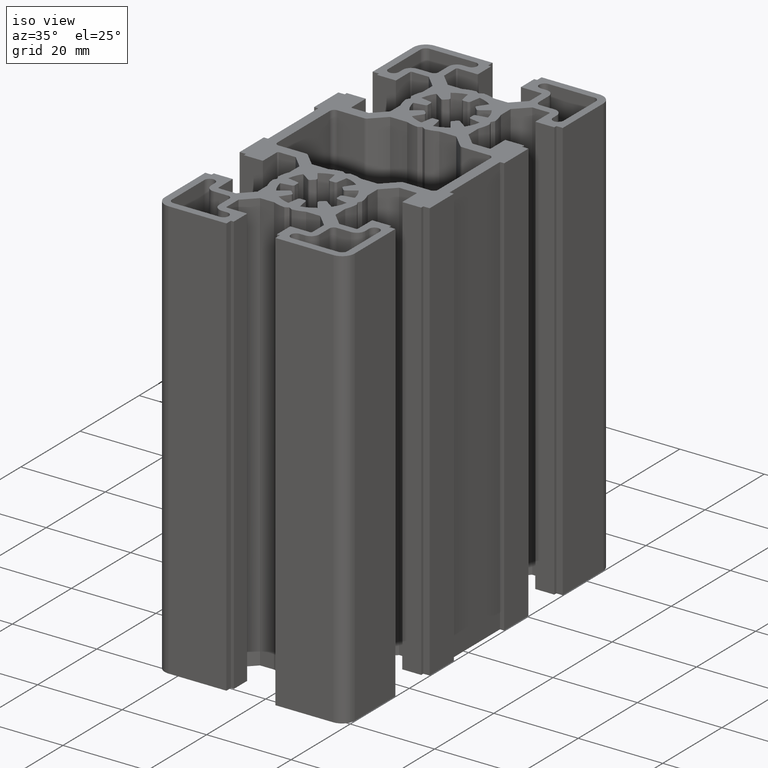
[diagram: clean part render]
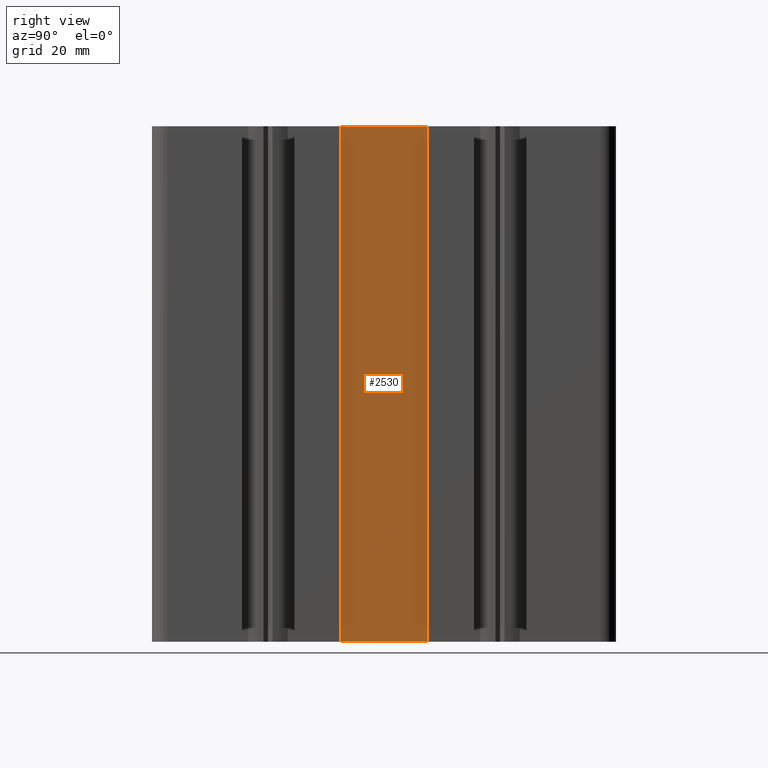
[diagram: tour spotlight — one face highlighted and labeled with its STEP entity id]
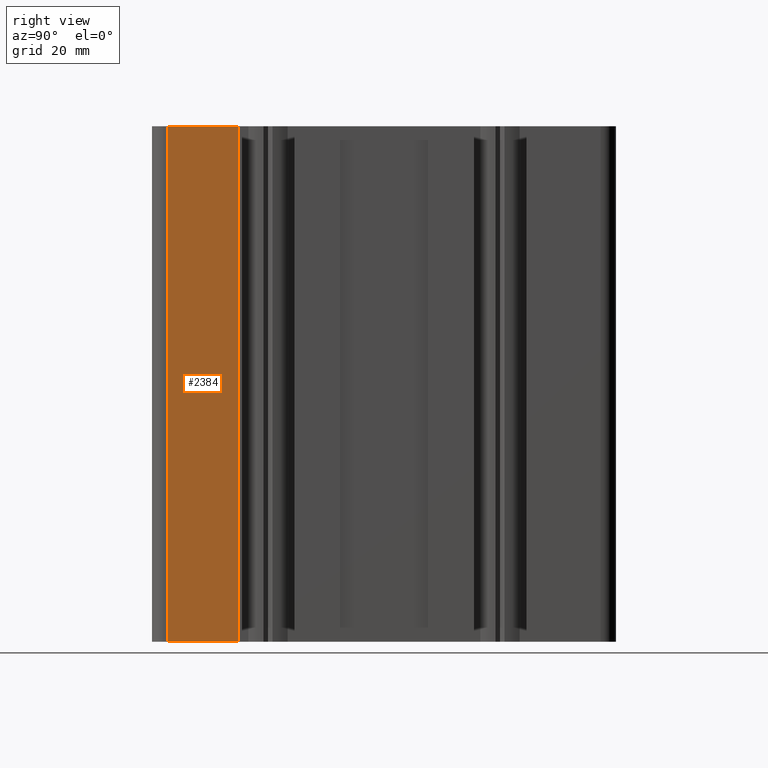
[diagram: tour spotlight — one face highlighted and labeled with its STEP entity id]
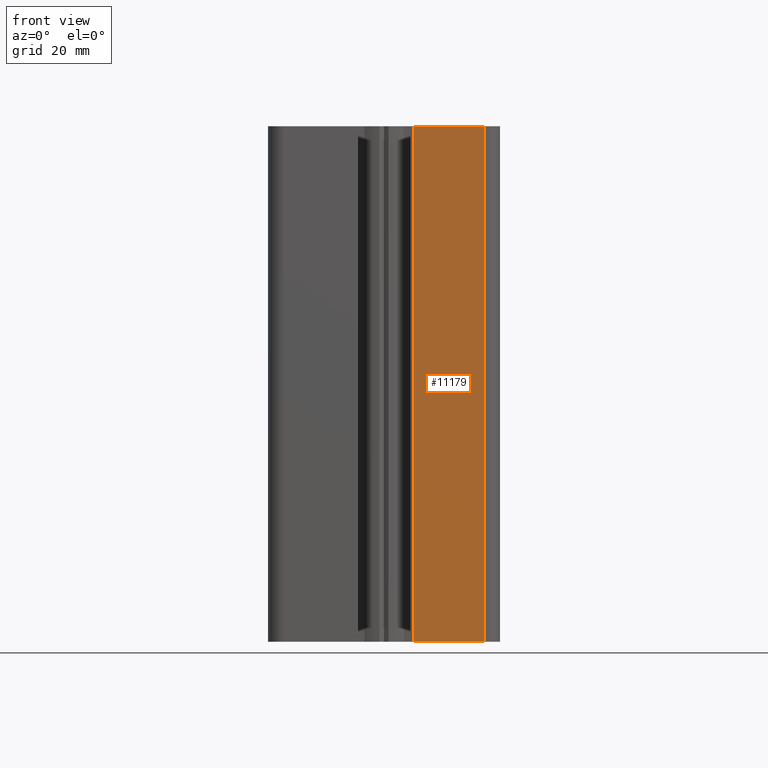
[diagram: tour spotlight — one face highlighted and labeled with its STEP entity id]
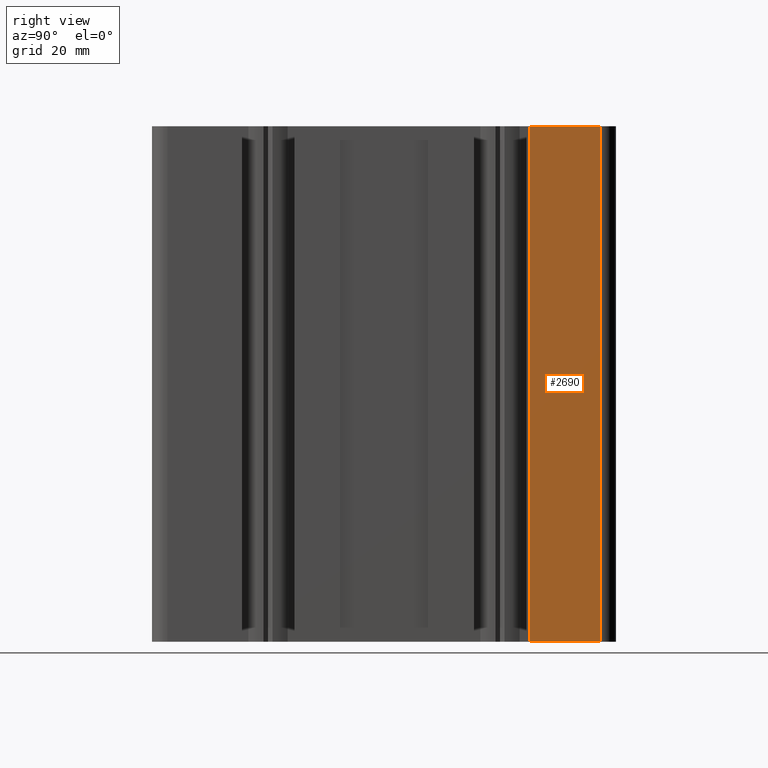
[diagram: tour spotlight — one face highlighted and labeled with its STEP entity id]
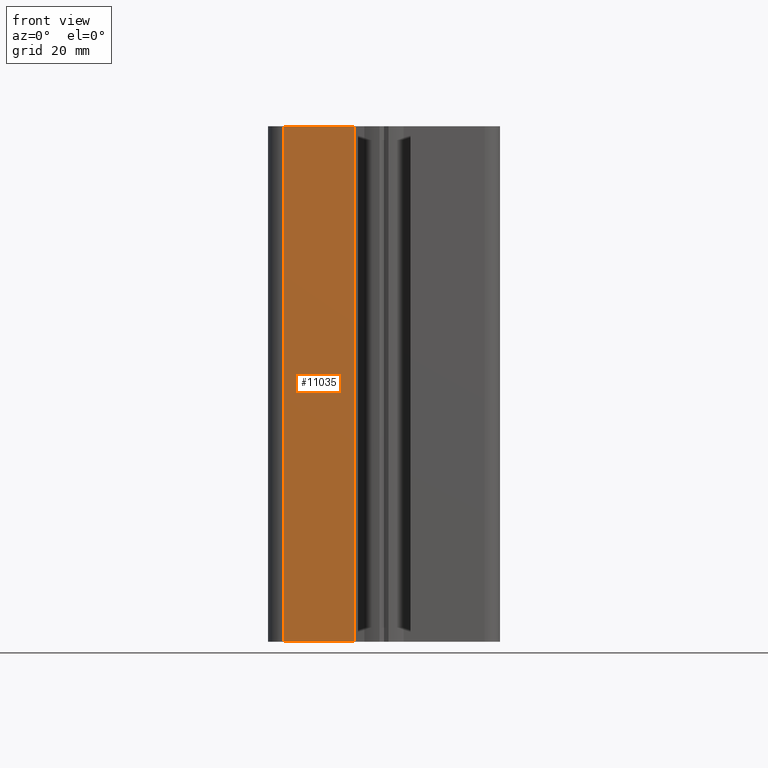
[diagram: tour spotlight — one face highlighted and labeled with its STEP entity id]
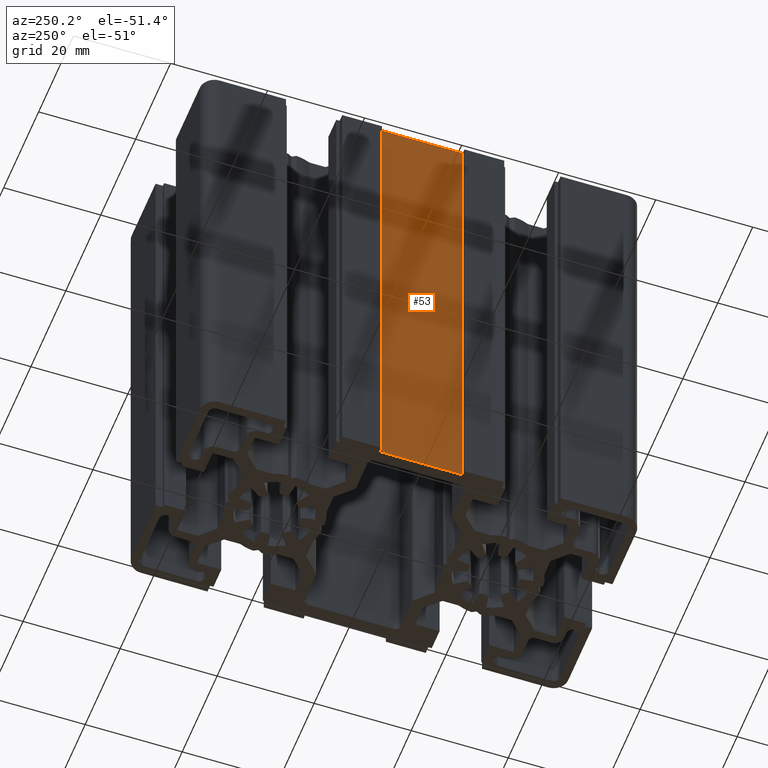
[diagram: tour spotlight — one face highlighted and labeled with its STEP entity id]
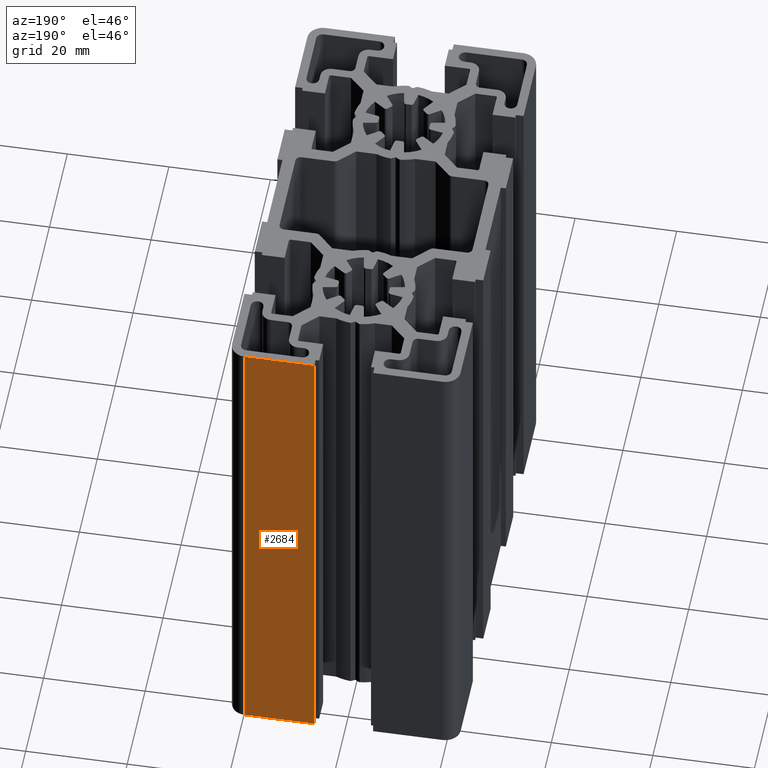
[diagram: tour spotlight — one face highlighted and labeled with its STEP entity id]
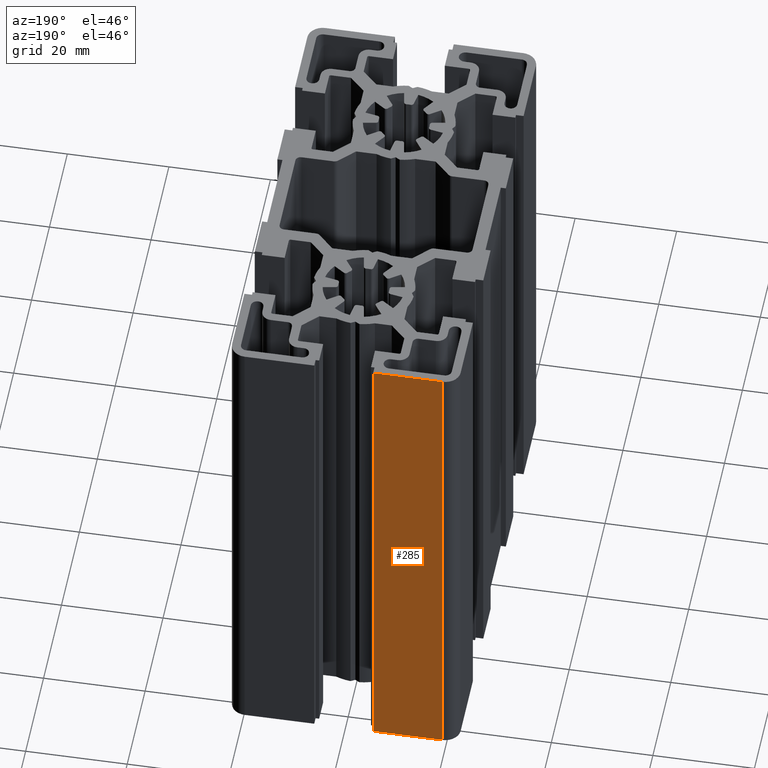
[diagram: tour spotlight — one face highlighted and labeled with its STEP entity id]
A machine part: a face-by-face anatomy tour. The part has 330 B-rep faces; the first image is the clean iso view, then the 8 largest visible faces are spotlighted one at a time (largest first), each with its STEP entity span.

Face 1 — right view, entity #2530. In plain terms, the highlighted planar face has unit normal (-1, 0, 0).
Definition (entity closure, byte-faithful):
#1623 = VERTEX_POINT ( 'NONE', #6886 ) ;
#1639 = EDGE_CURVE ( 'NONE', #1642, #1623, #6913, .T. ) ;
#1642 = VERTEX_POINT ( 'NONE', #6917 ) ;
#2477 = EDGE_CURVE ( 'NONE', #1642, #4116, #7872, .T. ) ;
#2479 = EDGE_LOOP ( 'NONE', ( #2531, #2529, #2512, #2533 ) ) ;
#2512 = ORIENTED_EDGE ( 'NONE', *, *, #1639, .F. ) ;
#2528 = EDGE_CURVE ( 'NONE', #1623, #4113, #7970, .T. ) ;
#2529 = ORIENTED_EDGE ( 'NONE', *, *, #2528, .F. ) ;
#2530 = ADVANCED_FACE ( 'NONE', ( #7977 ), #7949, .F. ) ;
#2531 = ORIENTED_EDGE ( 'NONE', *, *, #4093, .T. ) ;
#2533 = ORIENTED_EDGE ( 'NONE', *, *, #2477, .T. ) ;
#4093 = EDGE_CURVE ( 'NONE', #4116, #4113, #10217, .T. ) ;
#4113 = VERTEX_POINT ( 'NONE', #10196 ) ;
#4116 = VERTEX_POINT ( 'NONE', #10239 ) ;
#6886 = CARTESIAN_POINT ( 'NONE',  ( 21.50000000000000000, 8.500000000000000000, 100.0000000000000000 ) ) ;
#6909 = DIRECTION ( 'NONE',  ( -0.0000000000000000000, 1.000000000000000000, -0.0000000000000000000 ) ) ;
#6910 = VECTOR ( 'NONE', #6909, 1000.000000000000000 ) ;
#6911 = CARTESIAN_POINT ( 'NONE',  ( 21.50000000000000000, 8.500000000000000000, 100.0000000000000000 ) ) ;
#6913 = LINE ( 'NONE', #6911, #6910 ) ;
#6917 = CARTESIAN_POINT ( 'NONE',  ( 21.50000000000000000, -8.500000000000000000, 100.0000000000000000 ) ) ;
#7869 = DIRECTION ( 'NONE',  ( -0.0000000000000000000, -0.0000000000000000000, -1.000000000000000000 ) ) ;
#7870 = VECTOR ( 'NONE', #7869, 1000.000000000000000 ) ;
#7871 = CARTESIAN_POINT ( 'NONE',  ( 21.50000000000000000, -8.500000000000000000, 100.0000000000000000 ) ) ;
#7872 = LINE ( 'NONE', #7871, #7870 ) ;
#7932 = AXIS2_PLACEMENT_3D ( 'NONE', #7966, #7963, #7962 ) ;
#7949 = PLANE ( 'NONE',  #7932 ) ;
#7962 = DIRECTION ( 'NONE',  ( 0.0000000000000000000, 0.0000000000000000000, 1.000000000000000000 ) ) ;
#7963 = DIRECTION ( 'NONE',  ( -1.000000000000000000, 0.0000000000000000000, 0.0000000000000000000 ) ) ;
#7966 = CARTESIAN_POINT ( 'NONE',  ( 21.50000000000000000, 8.500000000000000000, 100.0000000000000000 ) ) ;
#7967 = DIRECTION ( 'NONE',  ( -0.0000000000000000000, -0.0000000000000000000, -1.000000000000000000 ) ) ;
#7968 = VECTOR ( 'NONE', #7967, 1000.000000000000000 ) ;
#7969 = CARTESIAN_POINT ( 'NONE',  ( 21.50000000000000000, 8.500000000000000000, 100.0000000000000000 ) ) ;
#7970 = LINE ( 'NONE', #7969, #7968 ) ;
#7977 = FACE_OUTER_BOUND ( 'NONE', #2479, .T. ) ;
#10196 = CARTESIAN_POINT ( 'NONE',  ( 21.50000000000000000, 8.500000000000000000, 0.0000000000000000000 ) ) ;
#10212 = DIRECTION ( 'NONE',  ( -0.0000000000000000000, 1.000000000000000000, -0.0000000000000000000 ) ) ;
#10213 = VECTOR ( 'NONE', #10212, 1000.000000000000000 ) ;
#10216 = CARTESIAN_POINT ( 'NONE',  ( 21.50000000000000000, 8.500000000000000000, 0.0000000000000000000 ) ) ;
#10217 = LINE ( 'NONE', #10216, #10213 ) ;
#10239 = CARTESIAN_POINT ( 'NONE',  ( 21.50000000000000000, -8.500000000000000000, 0.0000000000000000000 ) ) ;

Face 2 — right view, entity #2384. In plain terms, the highlighted planar face has unit normal (-1, 0, 0).
Definition (entity closure, byte-faithful):
#1564 = VERTEX_POINT ( 'NONE', #6750 ) ;
#1575 = EDGE_CURVE ( 'NONE', #1613, #1564, #6788, .T. ) ;
#1613 = VERTEX_POINT ( 'NONE', #6838 ) ;
#2377 = ORIENTED_EDGE ( 'NONE', *, *, #2434, .T. ) ;
#2378 = ORIENTED_EDGE ( 'NONE', *, *, #1575, .F. ) ;
#2382 = ORIENTED_EDGE ( 'NONE', *, *, #4197, .T. ) ;
#2384 = ADVANCED_FACE ( 'NONE', ( #7716 ), #7722, .F. ) ;
#2386 = ORIENTED_EDGE ( 'NONE', *, *, #2388, .F. ) ;
#2388 = EDGE_CURVE ( 'NONE', #1564, #4204, #7715, .T. ) ;
#2434 = EDGE_CURVE ( 'NONE', #1613, #4207, #7819, .T. ) ;
#2441 = EDGE_LOOP ( 'NONE', ( #2382, #2386, #2378, #2377 ) ) ;
#4197 = EDGE_CURVE ( 'NONE', #4207, #4204, #10374, .T. ) ;
#4204 = VERTEX_POINT ( 'NONE', #10408 ) ;
#4207 = VERTEX_POINT ( 'NONE', #10407 ) ;
#6750 = CARTESIAN_POINT ( 'NONE',  ( 22.50000000000000000, -28.29999900000001000, 100.0000000000000000 ) ) ;
#6785 = DIRECTION ( 'NONE',  ( -0.0000000000000000000, 1.000000000000000000, -0.0000000000000000000 ) ) ;
#6786 = VECTOR ( 'NONE', #6785, 1000.000000000000000 ) ;
#6787 = CARTESIAN_POINT ( 'NONE',  ( 22.50000000000000000, -28.29999900000001000, 100.0000000000000000 ) ) ;
#6788 = LINE ( 'NONE', #6787, #6786 ) ;
#6838 = CARTESIAN_POINT ( 'NONE',  ( 22.50000000000000000, -42.00000000000000000, 100.0000000000000000 ) ) ;
#7715 = LINE ( 'NONE', #7760, #7759 ) ;
#7716 = FACE_OUTER_BOUND ( 'NONE', #2441, .T. ) ;
#7721 = CARTESIAN_POINT ( 'NONE',  ( 22.50000000000000000, -28.29999900000001000, 100.0000000000000000 ) ) ;
#7722 = PLANE ( 'NONE',  #7772 ) ;
#7758 = DIRECTION ( 'NONE',  ( -0.0000000000000000000, -0.0000000000000000000, -1.000000000000000000 ) ) ;
#7759 = VECTOR ( 'NONE', #7758, 1000.000000000000000 ) ;
#7760 = CARTESIAN_POINT ( 'NONE',  ( 22.50000000000000000, -28.29999900000001000, 100.0000000000000000 ) ) ;
#7767 = DIRECTION ( 'NONE',  ( 0.0000000000000000000, 0.0000000000000000000, 1.000000000000000000 ) ) ;
#7768 = DIRECTION ( 'NONE',  ( -1.000000000000000000, 0.0000000000000000000, 0.0000000000000000000 ) ) ;
#7772 = AXIS2_PLACEMENT_3D ( 'NONE', #7721, #7768, #7767 ) ;
#7819 = LINE ( 'NONE', #7861, #7860 ) ;
#7859 = DIRECTION ( 'NONE',  ( -0.0000000000000000000, -0.0000000000000000000, -1.000000000000000000 ) ) ;
#7860 = VECTOR ( 'NONE', #7859, 1000.000000000000000 ) ;
#7861 = CARTESIAN_POINT ( 'NONE',  ( 22.50000000000000000, -42.00000000000000000, 100.0000000000000000 ) ) ;
#10364 = DIRECTION ( 'NONE',  ( -0.0000000000000000000, 1.000000000000000000, -0.0000000000000000000 ) ) ;
#10365 = VECTOR ( 'NONE', #10364, 1000.000000000000000 ) ;
#10366 = CARTESIAN_POINT ( 'NONE',  ( 22.50000000000000000, -28.29999900000001000, 0.0000000000000000000 ) ) ;
#10374 = LINE ( 'NONE', #10366, #10365 ) ;
#10407 = CARTESIAN_POINT ( 'NONE',  ( 22.50000000000000000, -42.00000000000000000, 0.0000000000000000000 ) ) ;
#10408 = CARTESIAN_POINT ( 'NONE',  ( 22.50000000000000000, -28.29999900000001000, 0.0000000000000000000 ) ) ;

Face 3 — front view, entity #11179. In plain terms, the highlighted planar face has unit normal (0, 1, -0).
Definition (entity closure, byte-faithful):
#1547 = EDGE_CURVE ( 'NONE', #1614, #1548, #6776, .T. ) ;
#1548 = VERTEX_POINT ( 'NONE', #6725 ) ;
#1614 = VERTEX_POINT ( 'NONE', #6845 ) ;
#2435 = ORIENTED_EDGE ( 'NONE', *, *, #1547, .F. ) ;
#2437 = ORIENTED_EDGE ( 'NONE', *, *, #4201, .T. ) ;
#2439 = ORIENTED_EDGE ( 'NONE', *, *, #11197, .T. ) ;
#4144 = VERTEX_POINT ( 'NONE', #10074 ) ;
#4198 = VERTEX_POINT ( 'NONE', #10368 ) ;
#4201 = EDGE_CURVE ( 'NONE', #4198, #4144, #10362, .T. ) ;
#6725 = CARTESIAN_POINT ( 'NONE',  ( 19.50000000000000000, -45.00000000000000000, 100.0000000000000000 ) ) ;
#6773 = DIRECTION ( 'NONE',  ( 1.000000000000000000, -0.0000000000000000000, -0.0000000000000000000 ) ) ;
#6774 = VECTOR ( 'NONE', #6773, 1000.000000000000000 ) ;
#6775 = CARTESIAN_POINT ( 'NONE',  ( 19.50000000000000000, -45.00000000000000000, 100.0000000000000000 ) ) ;
#6776 = LINE ( 'NONE', #6775, #6774 ) ;
#6845 = CARTESIAN_POINT ( 'NONE',  ( 5.799999000000015700, -45.00000000000000000, 100.0000000000000000 ) ) ;
#10074 = CARTESIAN_POINT ( 'NONE',  ( 19.50000000000000000, -45.00000000000000000, 0.0000000000000000000 ) ) ;
#10362 = LINE ( 'NONE', #10411, #10410 ) ;
#10368 = CARTESIAN_POINT ( 'NONE',  ( 5.799999000000015700, -45.00000000000000000, 0.0000000000000000000 ) ) ;
#10409 = DIRECTION ( 'NONE',  ( 1.000000000000000000, -0.0000000000000000000, -0.0000000000000000000 ) ) ;
#10410 = VECTOR ( 'NONE', #10409, 1000.000000000000000 ) ;
#10411 = CARTESIAN_POINT ( 'NONE',  ( 19.50000000000000000, -45.00000000000000000, 0.0000000000000000000 ) ) ;
#10913 = CARTESIAN_POINT ( 'NONE',  ( 19.50000000000000000, -45.00000000000000000, 100.0000000000000000 ) ) ;
#10915 = PLANE ( 'NONE',  #10957 ) ;
#10937 = LINE ( 'NONE', #10948, #10947 ) ;
#10938 = LINE ( 'NONE', #10976, #10975 ) ;
#10946 = DIRECTION ( 'NONE',  ( -0.0000000000000000000, -0.0000000000000000000, -1.000000000000000000 ) ) ;
#10947 = VECTOR ( 'NONE', #10946, 1000.000000000000000 ) ;
#10948 = CARTESIAN_POINT ( 'NONE',  ( 19.50000000000000000, -45.00000000000000000, 100.0000000000000000 ) ) ;
#10951 = DIRECTION ( 'NONE',  ( 0.0000000000000000000, 0.0000000000000000000, 1.000000000000000000 ) ) ;
#10952 = DIRECTION ( 'NONE',  ( 0.0000000000000000000, 1.000000000000000000, -0.0000000000000000000 ) ) ;
#10957 = AXIS2_PLACEMENT_3D ( 'NONE', #10913, #10952, #10951 ) ;
#10962 = FACE_OUTER_BOUND ( 'NONE', #11167, .T. ) ;
#10974 = DIRECTION ( 'NONE',  ( -0.0000000000000000000, -0.0000000000000000000, -1.000000000000000000 ) ) ;
#10975 = VECTOR ( 'NONE', #10974, 1000.000000000000000 ) ;
#10976 = CARTESIAN_POINT ( 'NONE',  ( 5.799999000000015700, -45.00000000000000000, 100.0000000000000000 ) ) ;
#11167 = EDGE_LOOP ( 'NONE', ( #2437, #11177, #2435, #2439 ) ) ;
#11177 = ORIENTED_EDGE ( 'NONE', *, *, #11186, .F. ) ;
#11179 = ADVANCED_FACE ( 'NONE', ( #10962 ), #10915, .F. ) ;
#11186 = EDGE_CURVE ( 'NONE', #1548, #4144, #10937, .T. ) ;
#11197 = EDGE_CURVE ( 'NONE', #1614, #4198, #10938, .T. ) ;

Face 4 — right view, entity #2690. In plain terms, the highlighted planar face has unit normal (-1, 0, 0).
Definition (entity closure, byte-faithful):
#1618 = EDGE_CURVE ( 'NONE', #1663, #1694, #6843, .T. ) ;
#1663 = VERTEX_POINT ( 'NONE', #6930 ) ;
#1694 = VERTEX_POINT ( 'NONE', #7010 ) ;
#2642 = EDGE_CURVE ( 'NONE', #1663, #3266, #8161, .T. ) ;
#2646 = ORIENTED_EDGE ( 'NONE', *, *, #1618, .F. ) ;
#2689 = EDGE_CURVE ( 'NONE', #1694, #3180, #8204, .T. ) ;
#2690 = ADVANCED_FACE ( 'NONE', ( #8170 ), #8168, .F. ) ;
#2691 = ORIENTED_EDGE ( 'NONE', *, *, #3274, .T. ) ;
#2693 = ORIENTED_EDGE ( 'NONE', *, *, #2689, .F. ) ;
#2695 = ORIENTED_EDGE ( 'NONE', *, *, #2642, .T. ) ;
#2704 = EDGE_LOOP ( 'NONE', ( #2691, #2693, #2646, #2695 ) ) ;
#3180 = VERTEX_POINT ( 'NONE', #8902 ) ;
#3266 = VERTEX_POINT ( 'NONE', #9044 ) ;
#3274 = EDGE_CURVE ( 'NONE', #3266, #3180, #9030, .T. ) ;
#6837 = VECTOR ( 'NONE', #6849, 1000.000000000000000 ) ;
#6839 = CARTESIAN_POINT ( 'NONE',  ( 22.50000000000000000, 28.29999900000001000, 100.0000000000000000 ) ) ;
#6843 = LINE ( 'NONE', #6839, #6837 ) ;
#6849 = DIRECTION ( 'NONE',  ( 0.0000000000000000000, 1.000000000000000000, 0.0000000000000000000 ) ) ;
#6930 = CARTESIAN_POINT ( 'NONE',  ( 22.50000000000000000, 28.29999900000001000, 100.0000000000000000 ) ) ;
#7010 = CARTESIAN_POINT ( 'NONE',  ( 22.50000000000000000, 42.00000000000000000, 100.0000000000000000 ) ) ;
#8153 = DIRECTION ( 'NONE',  ( -0.0000000000000000000, -0.0000000000000000000, -1.000000000000000000 ) ) ;
#8154 = VECTOR ( 'NONE', #8153, 1000.000000000000000 ) ;
#8155 = CARTESIAN_POINT ( 'NONE',  ( 22.50000000000000000, 28.29999900000001000, 100.0000000000000000 ) ) ;
#8161 = LINE ( 'NONE', #8155, #8154 ) ;
#8168 = PLANE ( 'NONE',  #8200 ) ;
#8170 = FACE_OUTER_BOUND ( 'NONE', #2704, .T. ) ;
#8197 = DIRECTION ( 'NONE',  ( 0.0000000000000000000, 0.0000000000000000000, 1.000000000000000000 ) ) ;
#8200 = AXIS2_PLACEMENT_3D ( 'NONE', #8207, #8205, #8197 ) ;
#8201 = DIRECTION ( 'NONE',  ( -0.0000000000000000000, -0.0000000000000000000, -1.000000000000000000 ) ) ;
#8202 = VECTOR ( 'NONE', #8201, 1000.000000000000000 ) ;
#8203 = CARTESIAN_POINT ( 'NONE',  ( 22.50000000000000000, 42.00000000000000000, 100.0000000000000000 ) ) ;
#8204 = LINE ( 'NONE', #8203, #8202 ) ;
#8205 = DIRECTION ( 'NONE',  ( -1.000000000000000000, 0.0000000000000000000, 0.0000000000000000000 ) ) ;
#8207 = CARTESIAN_POINT ( 'NONE',  ( 22.50000000000000000, 28.29999900000001000, 100.0000000000000000 ) ) ;
#8902 = CARTESIAN_POINT ( 'NONE',  ( 22.50000000000000000, 42.00000000000000000, 0.0000000000000000000 ) ) ;
#9022 = DIRECTION ( 'NONE',  ( 0.0000000000000000000, 1.000000000000000000, 0.0000000000000000000 ) ) ;
#9023 = VECTOR ( 'NONE', #9022, 1000.000000000000000 ) ;
#9030 = LINE ( 'NONE', #9032, #9023 ) ;
#9032 = CARTESIAN_POINT ( 'NONE',  ( 22.50000000000000000, 28.29999900000001000, 0.0000000000000000000 ) ) ;
#9044 = CARTESIAN_POINT ( 'NONE',  ( 22.50000000000000000, 28.29999900000001000, 0.0000000000000000000 ) ) ;

Face 5 — front view, entity #11035. In plain terms, the highlighted planar face has unit normal (0, 1, 0).
Definition (entity closure, byte-faithful):
#1462 = VERTEX_POINT ( 'NONE', #6563 ) ;
#1517 = EDGE_CURVE ( 'NONE', #1518, #1462, #6722, .T. ) ;
#1518 = VERTEX_POINT ( 'NONE', #6669 ) ;
#4230 = VERTEX_POINT ( 'NONE', #10433 ) ;
#4277 = EDGE_CURVE ( 'NONE', #4230, #4291, #10523, .T. ) ;
#4291 = VERTEX_POINT ( 'NONE', #10555 ) ;
#6563 = CARTESIAN_POINT ( 'NONE',  ( -5.799999000000008600, -45.00000000000000000, 100.0000000000000000 ) ) ;
#6669 = CARTESIAN_POINT ( 'NONE',  ( -19.50000000000000000, -45.00000000000000000, 100.0000000000000000 ) ) ;
#6719 = DIRECTION ( 'NONE',  ( 1.000000000000000000, 0.0000000000000000000, 0.0000000000000000000 ) ) ;
#6720 = VECTOR ( 'NONE', #6719, 1000.000000000000000 ) ;
#6721 = CARTESIAN_POINT ( 'NONE',  ( -19.50000000000000000, -45.00000000000000000, 100.0000000000000000 ) ) ;
#6722 = LINE ( 'NONE', #6721, #6720 ) ;
#10433 = CARTESIAN_POINT ( 'NONE',  ( -19.50000000000000000, -45.00000000000000000, 0.0000000000000000000 ) ) ;
#10480 = CARTESIAN_POINT ( 'NONE',  ( -19.50000000000000000, -45.00000000000000000, 0.0000000000000000000 ) ) ;
#10514 = DIRECTION ( 'NONE',  ( 1.000000000000000000, 0.0000000000000000000, 0.0000000000000000000 ) ) ;
#10515 = VECTOR ( 'NONE', #10514, 1000.000000000000000 ) ;
#10523 = LINE ( 'NONE', #10480, #10515 ) ;
#10555 = CARTESIAN_POINT ( 'NONE',  ( -5.799999000000008600, -45.00000000000000000, 0.0000000000000000000 ) ) ;
#10709 = DIRECTION ( 'NONE',  ( -0.0000000000000000000, -0.0000000000000000000, -1.000000000000000000 ) ) ;
#10710 = VECTOR ( 'NONE', #10709, 1000.000000000000000 ) ;
#10717 = CARTESIAN_POINT ( 'NONE',  ( -19.50000000000000000, -45.00000000000000000, 100.0000000000000000 ) ) ;
#10718 = LINE ( 'NONE', #10717, #10710 ) ;
#10741 = DIRECTION ( 'NONE',  ( -0.0000000000000000000, -0.0000000000000000000, -1.000000000000000000 ) ) ;
#10742 = VECTOR ( 'NONE', #10741, 1000.000000000000000 ) ;
#10743 = CARTESIAN_POINT ( 'NONE',  ( -5.799999000000008600, -45.00000000000000000, 100.0000000000000000 ) ) ;
#10745 = DIRECTION ( 'NONE',  ( 0.0000000000000000000, -0.0000000000000000000, 1.000000000000000000 ) ) ;
#10746 = DIRECTION ( 'NONE',  ( 0.0000000000000000000, 1.000000000000000000, 0.0000000000000000000 ) ) ;
#10747 = LINE ( 'NONE', #10743, #10742 ) ;
#10756 = PLANE ( 'NONE',  #10761 ) ;
#10759 = CARTESIAN_POINT ( 'NONE',  ( -19.50000000000000000, -45.00000000000000000, 100.0000000000000000 ) ) ;
#10760 = FACE_OUTER_BOUND ( 'NONE', #11019, .T. ) ;
#10761 = AXIS2_PLACEMENT_3D ( 'NONE', #10759, #10746, #10745 ) ;
#11019 = EDGE_LOOP ( 'NONE', ( #11043, #11041, #11038, #11068 ) ) ;
#11022 = EDGE_CURVE ( 'NONE', #1518, #4230, #10718, .T. ) ;
#11035 = ADVANCED_FACE ( 'NONE', ( #10760 ), #10756, .F. ) ;
#11037 = EDGE_CURVE ( 'NONE', #1462, #4291, #10747, .T. ) ;
#11038 = ORIENTED_EDGE ( 'NONE', *, *, #1517, .F. ) ;
#11041 = ORIENTED_EDGE ( 'NONE', *, *, #11037, .F. ) ;
#11043 = ORIENTED_EDGE ( 'NONE', *, *, #4277, .T. ) ;
#11068 = ORIENTED_EDGE ( 'NONE', *, *, #11022, .T. ) ;

Face 6 — auxiliary view, entity #53. In plain terms, the highlighted planar face has unit normal (1, 0, -0).
Definition (entity closure, byte-faithful):
#34 = EDGE_LOOP ( 'NONE', ( #47, #54, #40, #73 ) ) ;
#40 = ORIENTED_EDGE ( 'NONE', *, *, #1453, .F. ) ;
#47 = ORIENTED_EDGE ( 'NONE', *, *, #4354, .T. ) ;
#50 = EDGE_CURVE ( 'NONE', #1450, #4295, #2164, .T. ) ;
#53 = ADVANCED_FACE ( 'NONE', ( #2166 ), #2171, .F. ) ;
#54 = ORIENTED_EDGE ( 'NONE', *, *, #50, .F. ) ;
#62 = EDGE_CURVE ( 'NONE', #1399, #4294, #2150, .T. ) ;
#73 = ORIENTED_EDGE ( 'NONE', *, *, #62, .T. ) ;
#1399 = VERTEX_POINT ( 'NONE', #6483 ) ;
#1450 = VERTEX_POINT ( 'NONE', #6570 ) ;
#1453 = EDGE_CURVE ( 'NONE', #1399, #1450, #6571, .T. ) ;
#2150 = LINE ( 'NONE', #2203, #2202 ) ;
#2156 = DIRECTION ( 'NONE',  ( -0.0000000000000000000, 0.0000000000000000000, -1.000000000000000000 ) ) ;
#2157 = DIRECTION ( 'NONE',  ( 1.000000000000000000, 0.0000000000000000000, -0.0000000000000000000 ) ) ;
#2161 = DIRECTION ( 'NONE',  ( -0.0000000000000000000, -0.0000000000000000000, -1.000000000000000000 ) ) ;
#2162 = VECTOR ( 'NONE', #2161, 1000.000000000000000 ) ;
#2163 = CARTESIAN_POINT ( 'NONE',  ( -21.50000000000000000, -8.500000000000000000, 100.0000000000000000 ) ) ;
#2164 = LINE ( 'NONE', #2163, #2162 ) ;
#2166 = FACE_OUTER_BOUND ( 'NONE', #34, .T. ) ;
#2167 = CARTESIAN_POINT ( 'NONE',  ( -21.50000000000000000, 8.500000000000000000, 100.0000000000000000 ) ) ;
#2171 = PLANE ( 'NONE',  #2172 ) ;
#2172 = AXIS2_PLACEMENT_3D ( 'NONE', #2167, #2157, #2156 ) ;
#2201 = DIRECTION ( 'NONE',  ( -0.0000000000000000000, -0.0000000000000000000, -1.000000000000000000 ) ) ;
#2202 = VECTOR ( 'NONE', #2201, 1000.000000000000000 ) ;
#2203 = CARTESIAN_POINT ( 'NONE',  ( -21.50000000000000000, 8.500000000000000000, 100.0000000000000000 ) ) ;
#4294 = VERTEX_POINT ( 'NONE', #10553 ) ;
#4295 = VERTEX_POINT ( 'NONE', #10557 ) ;
#4354 = EDGE_CURVE ( 'NONE', #4294, #4295, #10670, .T. ) ;
#6483 = CARTESIAN_POINT ( 'NONE',  ( -21.50000000000000000, 8.500000000000000000, 100.0000000000000000 ) ) ;
#6560 = DIRECTION ( 'NONE',  ( 0.0000000000000000000, -1.000000000000000000, 0.0000000000000000000 ) ) ;
#6561 = VECTOR ( 'NONE', #6560, 1000.000000000000000 ) ;
#6562 = CARTESIAN_POINT ( 'NONE',  ( -21.50000000000000000, 8.500000000000000000, 100.0000000000000000 ) ) ;
#6570 = CARTESIAN_POINT ( 'NONE',  ( -21.50000000000000000, -8.500000000000000000, 100.0000000000000000 ) ) ;
#6571 = LINE ( 'NONE', #6562, #6561 ) ;
#10553 = CARTESIAN_POINT ( 'NONE',  ( -21.50000000000000000, 8.500000000000000000, 0.0000000000000000000 ) ) ;
#10557 = CARTESIAN_POINT ( 'NONE',  ( -21.50000000000000000, -8.500000000000000000, 0.0000000000000000000 ) ) ;
#10667 = DIRECTION ( 'NONE',  ( 0.0000000000000000000, -1.000000000000000000, 0.0000000000000000000 ) ) ;
#10668 = VECTOR ( 'NONE', #10667, 1000.000000000000000 ) ;
#10669 = CARTESIAN_POINT ( 'NONE',  ( -21.50000000000000000, 8.500000000000000000, 0.0000000000000000000 ) ) ;
#10670 = LINE ( 'NONE', #10669, #10668 ) ;

Face 7 — auxiliary view, entity #2684. In plain terms, the highlighted planar face has unit normal (0, -1, 0).
Definition (entity closure, byte-faithful):
#1657 = EDGE_CURVE ( 'NONE', #1693, #1692, #6934, .T. ) ;
#1692 = VERTEX_POINT ( 'NONE', #6953 ) ;
#1693 = VERTEX_POINT ( 'NONE', #6988 ) ;
#2682 = EDGE_CURVE ( 'NONE', #1692, #3245, #8165, .T. ) ;
#2683 = ORIENTED_EDGE ( 'NONE', *, *, #2682, .F. ) ;
#2684 = ADVANCED_FACE ( 'NONE', ( #8167 ), #8166, .F. ) ;
#2685 = ORIENTED_EDGE ( 'NONE', *, *, #3268, .T. ) ;
#2687 = ORIENTED_EDGE ( 'NONE', *, *, #1657, .F. ) ;
#2688 = ORIENTED_EDGE ( 'NONE', *, *, #2697, .T. ) ;
#2697 = EDGE_CURVE ( 'NONE', #1693, #3181, #8211, .T. ) ;
#2703 = EDGE_LOOP ( 'NONE', ( #2685, #2683, #2687, #2688 ) ) ;
#3181 = VERTEX_POINT ( 'NONE', #8872 ) ;
#3245 = VERTEX_POINT ( 'NONE', #8968 ) ;
#3268 = EDGE_CURVE ( 'NONE', #3181, #3245, #8991, .T. ) ;
#6931 = DIRECTION ( 'NONE',  ( -1.000000000000000000, 0.0000000000000000000, 0.0000000000000000000 ) ) ;
#6932 = VECTOR ( 'NONE', #6931, 1000.000000000000000 ) ;
#6933 = CARTESIAN_POINT ( 'NONE',  ( 19.50000000000000000, 45.00000000000000000, 100.0000000000000000 ) ) ;
#6934 = LINE ( 'NONE', #6933, #6932 ) ;
#6953 = CARTESIAN_POINT ( 'NONE',  ( 5.799999000000015700, 45.00000000000000000, 100.0000000000000000 ) ) ;
#6988 = CARTESIAN_POINT ( 'NONE',  ( 19.50000000000000000, 45.00000000000000000, 100.0000000000000000 ) ) ;
#8164 = CARTESIAN_POINT ( 'NONE',  ( 5.799999000000015700, 45.00000000000000000, 100.0000000000000000 ) ) ;
#8165 = LINE ( 'NONE', #8164, #8215 ) ;
#8166 = PLANE ( 'NONE',  #8213 ) ;
#8167 = FACE_OUTER_BOUND ( 'NONE', #2703, .T. ) ;
#8171 = CARTESIAN_POINT ( 'NONE',  ( 19.50000000000000000, 45.00000000000000000, 100.0000000000000000 ) ) ;
#8191 = DIRECTION ( 'NONE',  ( -0.0000000000000000000, -0.0000000000000000000, -1.000000000000000000 ) ) ;
#8192 = VECTOR ( 'NONE', #8191, 1000.000000000000000 ) ;
#8193 = CARTESIAN_POINT ( 'NONE',  ( 19.50000000000000000, 45.00000000000000000, 100.0000000000000000 ) ) ;
#8208 = DIRECTION ( 'NONE',  ( 0.0000000000000000000, -0.0000000000000000000, -1.000000000000000000 ) ) ;
#8209 = DIRECTION ( 'NONE',  ( 0.0000000000000000000, -1.000000000000000000, 0.0000000000000000000 ) ) ;
#8211 = LINE ( 'NONE', #8193, #8192 ) ;
#8213 = AXIS2_PLACEMENT_3D ( 'NONE', #8171, #8209, #8208 ) ;
#8214 = DIRECTION ( 'NONE',  ( -0.0000000000000000000, -0.0000000000000000000, -1.000000000000000000 ) ) ;
#8215 = VECTOR ( 'NONE', #8214, 1000.000000000000000 ) ;
#8872 = CARTESIAN_POINT ( 'NONE',  ( 19.50000000000000000, 45.00000000000000000, 0.0000000000000000000 ) ) ;
#8968 = CARTESIAN_POINT ( 'NONE',  ( 5.799999000000015700, 45.00000000000000000, 0.0000000000000000000 ) ) ;
#8991 = LINE ( 'NONE', #9035, #9034 ) ;
#9033 = DIRECTION ( 'NONE',  ( -1.000000000000000000, 0.0000000000000000000, 0.0000000000000000000 ) ) ;
#9034 = VECTOR ( 'NONE', #9033, 1000.000000000000000 ) ;
#9035 = CARTESIAN_POINT ( 'NONE',  ( 19.50000000000000000, 45.00000000000000000, 0.0000000000000000000 ) ) ;

Face 8 — auxiliary view, entity #285. In plain terms, the highlighted planar face has unit normal (0, -1, 0).
Definition (entity closure, byte-faithful):
#231 = EDGE_LOOP ( 'NONE', ( #286, #284, #289, #288 ) ) ;
#234 = EDGE_CURVE ( 'NONE', #1371, #361, #4427, .T. ) ;
#283 = EDGE_CURVE ( 'NONE', #1298, #302, #4468, .T. ) ;
#284 = ORIENTED_EDGE ( 'NONE', *, *, #283, .F. ) ;
#285 = ADVANCED_FACE ( 'NONE', ( #4487 ), #4372, .F. ) ;
#286 = ORIENTED_EDGE ( 'NONE', *, *, #358, .T. ) ;
#288 = ORIENTED_EDGE ( 'NONE', *, *, #234, .T. ) ;
#289 = ORIENTED_EDGE ( 'NONE', *, *, #1374, .F. ) ;
#302 = VERTEX_POINT ( 'NONE', #4494 ) ;
#358 = EDGE_CURVE ( 'NONE', #361, #302, #4619, .T. ) ;
#361 = VERTEX_POINT ( 'NONE', #4613 ) ;
#1298 = VERTEX_POINT ( 'NONE', #6288 ) ;
#1371 = VERTEX_POINT ( 'NONE', #6437 ) ;
#1374 = EDGE_CURVE ( 'NONE', #1371, #1298, #6467, .T. ) ;
#4372 = PLANE ( 'NONE',  #4514 ) ;
#4373 = CARTESIAN_POINT ( 'NONE',  ( -5.799999000000008600, 45.00000000000000000, 100.0000000000000000 ) ) ;
#4423 = DIRECTION ( 'NONE',  ( -0.0000000000000000000, -0.0000000000000000000, -1.000000000000000000 ) ) ;
#4424 = VECTOR ( 'NONE', #4423, 1000.000000000000000 ) ;
#4427 = LINE ( 'NONE', #4373, #4424 ) ;
#4467 = CARTESIAN_POINT ( 'NONE',  ( -19.50000000000000000, 45.00000000000000000, 100.0000000000000000 ) ) ;
#4468 = LINE ( 'NONE', #4467, #4516 ) ;
#4487 = FACE_OUTER_BOUND ( 'NONE', #231, .T. ) ;
#4494 = CARTESIAN_POINT ( 'NONE',  ( -19.50000000000000000, 45.00000000000000000, 0.0000000000000000000 ) ) ;
#4511 = DIRECTION ( 'NONE',  ( 0.0000000000000000000, -0.0000000000000000000, -1.000000000000000000 ) ) ;
#4512 = DIRECTION ( 'NONE',  ( 0.0000000000000000000, -1.000000000000000000, 0.0000000000000000000 ) ) ;
#4513 = CARTESIAN_POINT ( 'NONE',  ( -19.50000000000000000, 45.00000000000000000, 100.0000000000000000 ) ) ;
#4514 = AXIS2_PLACEMENT_3D ( 'NONE', #4513, #4512, #4511 ) ;
#4515 = DIRECTION ( 'NONE',  ( -0.0000000000000000000, -0.0000000000000000000, -1.000000000000000000 ) ) ;
#4516 = VECTOR ( 'NONE', #4515, 1000.000000000000000 ) ;
#4613 = CARTESIAN_POINT ( 'NONE',  ( -5.799999000000008600, 45.00000000000000000, 0.0000000000000000000 ) ) ;
#4616 = DIRECTION ( 'NONE',  ( -1.000000000000000000, -0.0000000000000000000, -0.0000000000000000000 ) ) ;
#4617 = VECTOR ( 'NONE', #4616, 1000.000000000000000 ) ;
#4618 = CARTESIAN_POINT ( 'NONE',  ( -19.50000000000000000, 45.00000000000000000, 0.0000000000000000000 ) ) ;
#4619 = LINE ( 'NONE', #4618, #4617 ) ;
#6288 = CARTESIAN_POINT ( 'NONE',  ( -19.50000000000000000, 45.00000000000000000, 100.0000000000000000 ) ) ;
#6437 = CARTESIAN_POINT ( 'NONE',  ( -5.799999000000008600, 45.00000000000000000, 100.0000000000000000 ) ) ;
#6464 = DIRECTION ( 'NONE',  ( -1.000000000000000000, -0.0000000000000000000, -0.0000000000000000000 ) ) ;
#6465 = VECTOR ( 'NONE', #6464, 1000.000000000000000 ) ;
#6466 = CARTESIAN_POINT ( 'NONE',  ( -19.50000000000000000, 45.00000000000000000, 100.0000000000000000 ) ) ;
#6467 = LINE ( 'NONE', #6466, #6465 ) ;